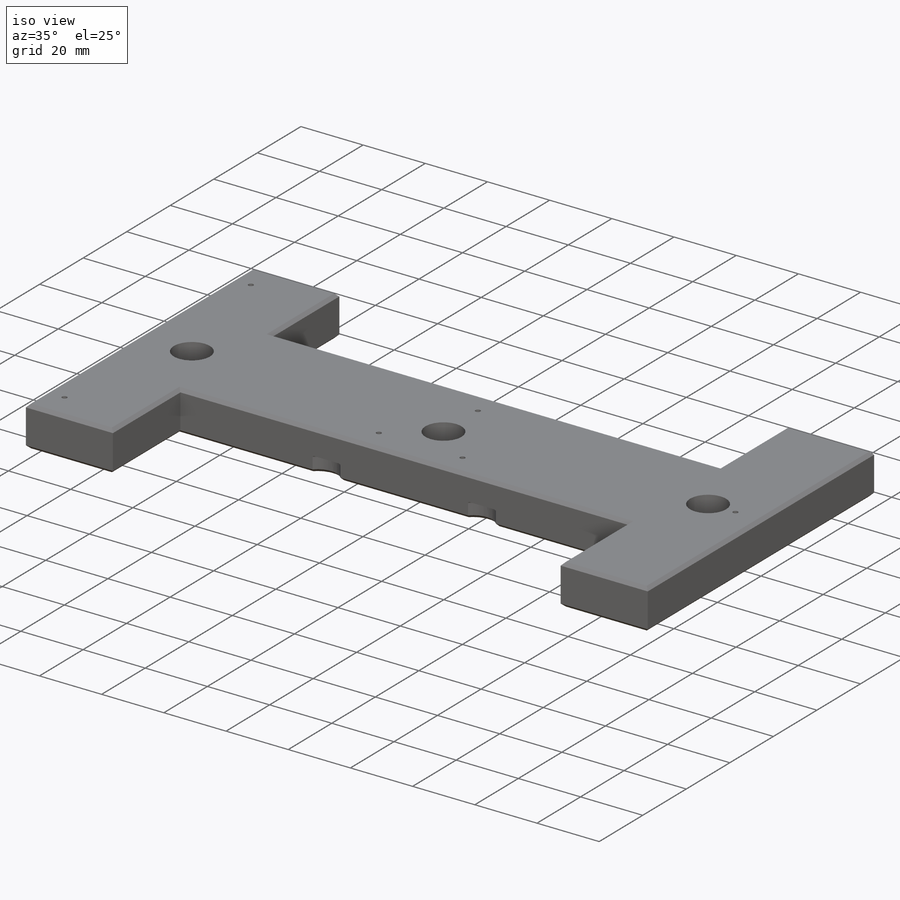
[diagram: iso view]
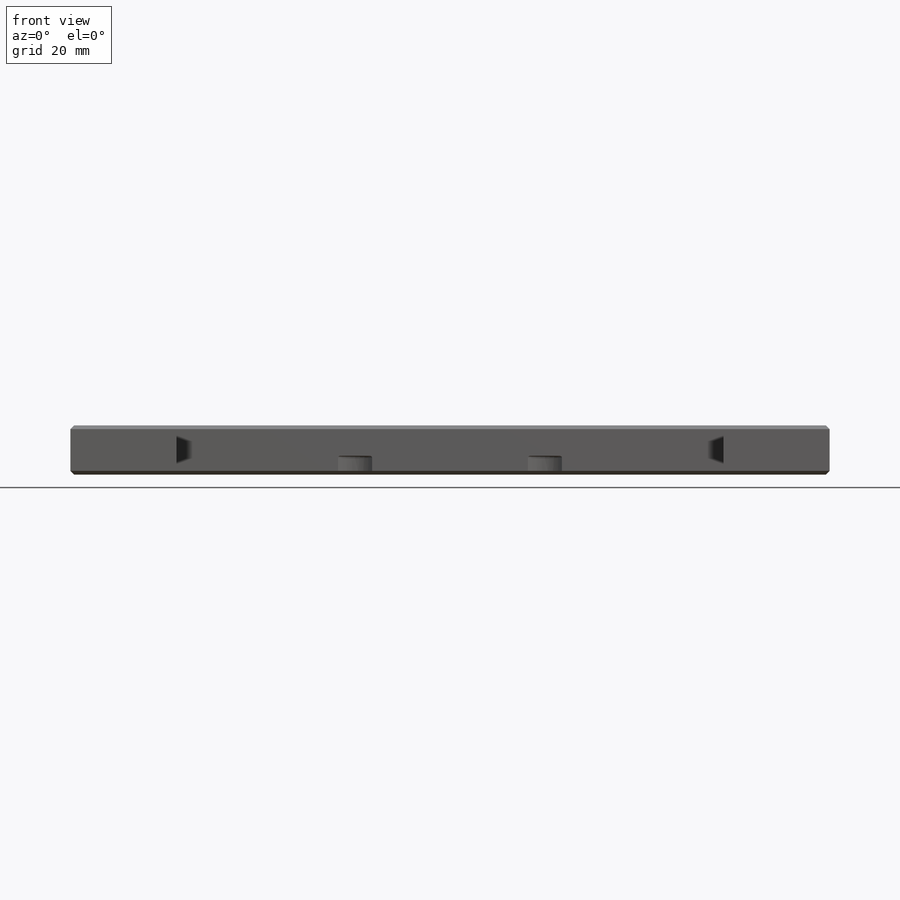
[diagram: front view]
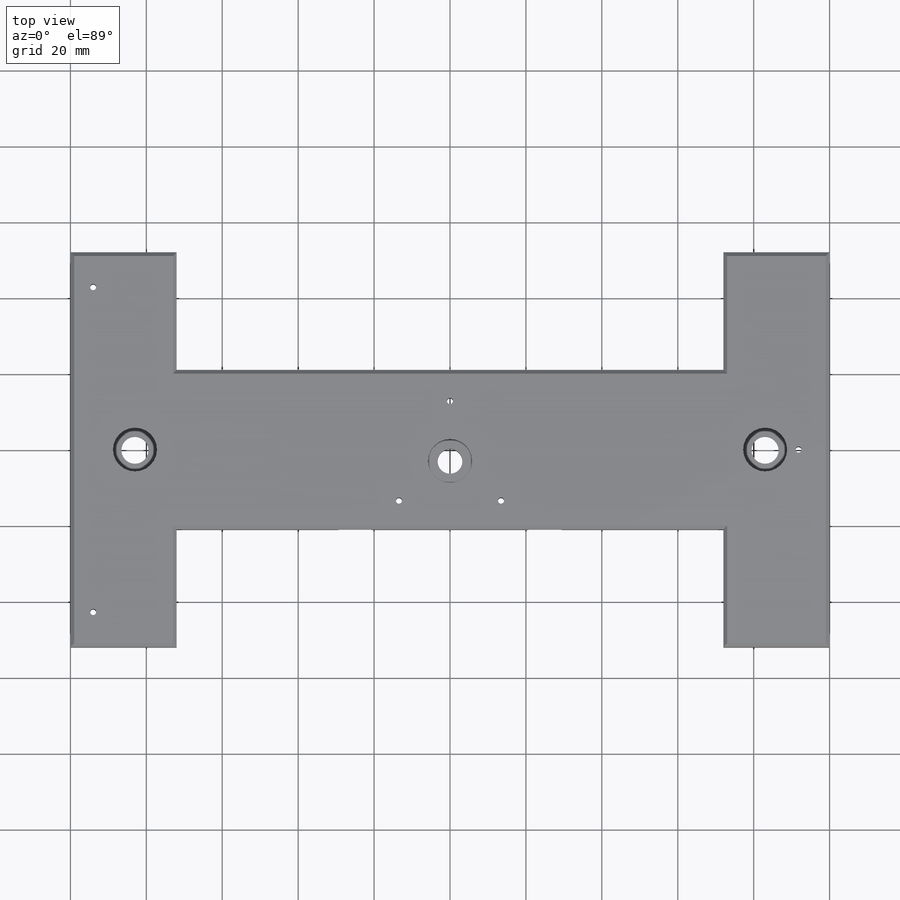
[diagram: top view]
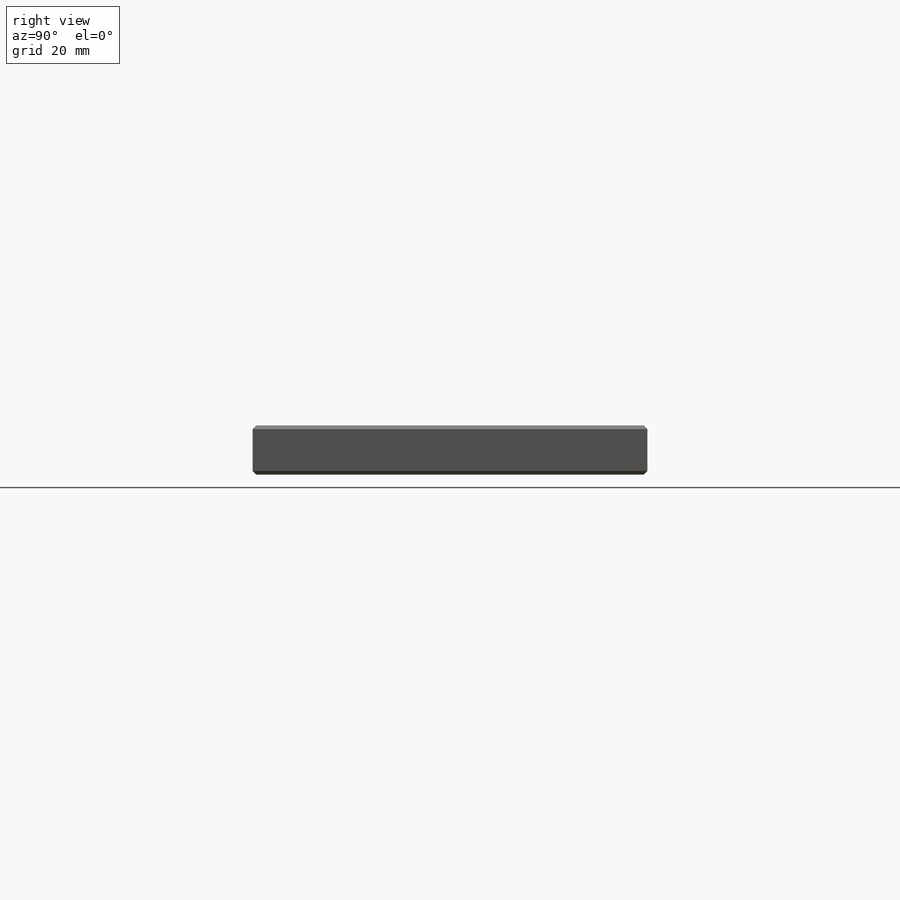
[diagram: right view]
SOLIDWORKS PART (.sldprt)
format: sldprt  version: not decoded by parser v0  size: 509,440 bytes
history: native  units: mm
features: sketch x13, cut_extrude x4, hole x3, fillet x2, mirror x2, material x1, extrude x1, chamfer x1 (+15 scaffold rows collapsed)
feature tree (42):
  scaffold x15  (default folders/planes/origin — collapsed)
  material  "Material <not specified>"
  sketch  "Sketch1"  dims[D1=42.0mm D2=200.0mm D3=28.0mm D4=104.0mm]
  extrude  "Extrude1"  Depth=13mm
  sketch  "Sketch2"  dims[c1.D3=6.3627mm c1.D1=30.0mm c1.D2=30.0mm c1.D4=165.0mm c1.D5=12.0mm c2.D4=6.0mm c2.D6=90.0mm]
  cut_extrude  "Extrude2"  Depth=3.675mm
  fillet  "Fillet1"  Radius=1.5875mm
  sketch  "Sketch3"  dims[D1=2.2mm D2=2.2mm D3=2.2mm D4=2.2mm D5=2.2mm D6=2.2mm]
  hole  "1/16 (0.0625) Diameter Hole1"  Diameter=1.5875mm Depth=13mm
  sketch  "3DSketch1"
  sketch  "Sketch4"  dims[hole-wizard template sketch: 60 standard entries collapsed; hole parameters kept: c18.Thru Hole Depth=13.0mm]
  hole  "F (0.257) Diameter Hole1"  Diameter=6.5278mm Depth=13mm
  sketch  "Sketch6"
  sketch  "Sketch5"  dims[hole-wizard template sketch: 60 standard entries collapsed; hole parameters kept: c18.Thru Hole Depth=13.0mm]
  sketch  "Sketch9"  dims[D1=11.6mm]
  cut_extrude  "Extrude3"  Depth=7.6026mm
  sketch  "Sketch10"  dims[D1=166.0mm]
  hole  "1/4 Clearance Hole1"  Diameter=7.14248mm Depth=13mm
  sketch  "3DSketch2"
  sketch  "Sketch11"  dims[hole-wizard template sketch: 60 standard entries collapsed; hole parameters kept: c18.Thru Hole Depth=13.0mm]
  sketch  "Sketch12"  dims[D1=11.6mm]
  cut_extrude  "Extrude4"  Depth=3.937mm
  sketch  "Sketch14"  dims[c1.D3=12.0mm c1.D1=4.0mm c1.D2=50.0mm c2.D1=4.0mm]
  cut_extrude  "Extrude6"  Depth=5mm
  fillet  "Fillet3"  Radius=0.5mm
  mirror  "Mirror2"
  mirror  "Mirror3"
  chamfer  "Chamfer1"  Distance=1mm Angle=45deg
decode coverage: 21 of 26 modeling features carry decoded parameters
note: ~ marks probable driven/reference dimensions
note: suppression state not decoded; provenance and decode notes live in map.json
